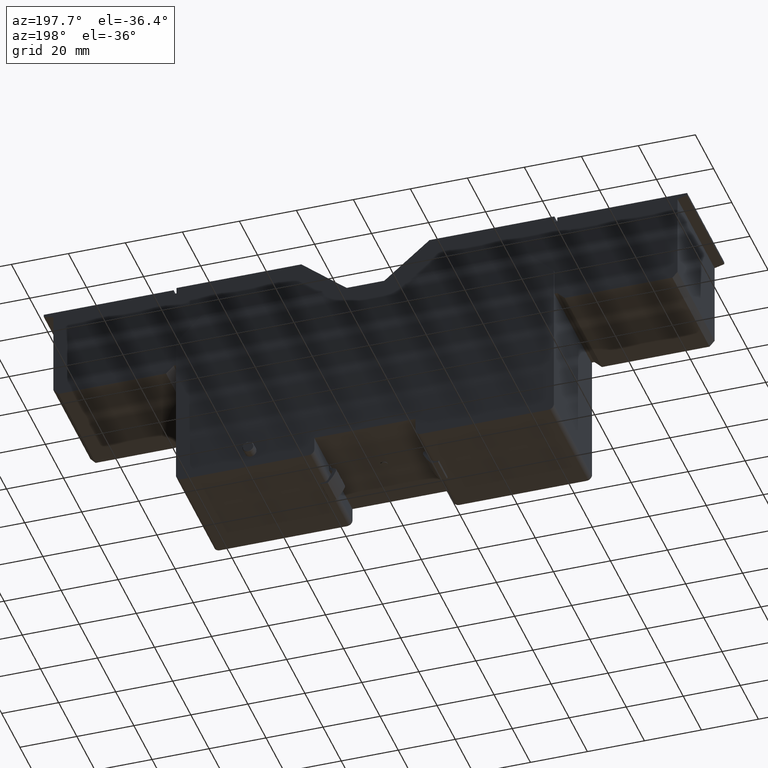
[diagram: clean part render]
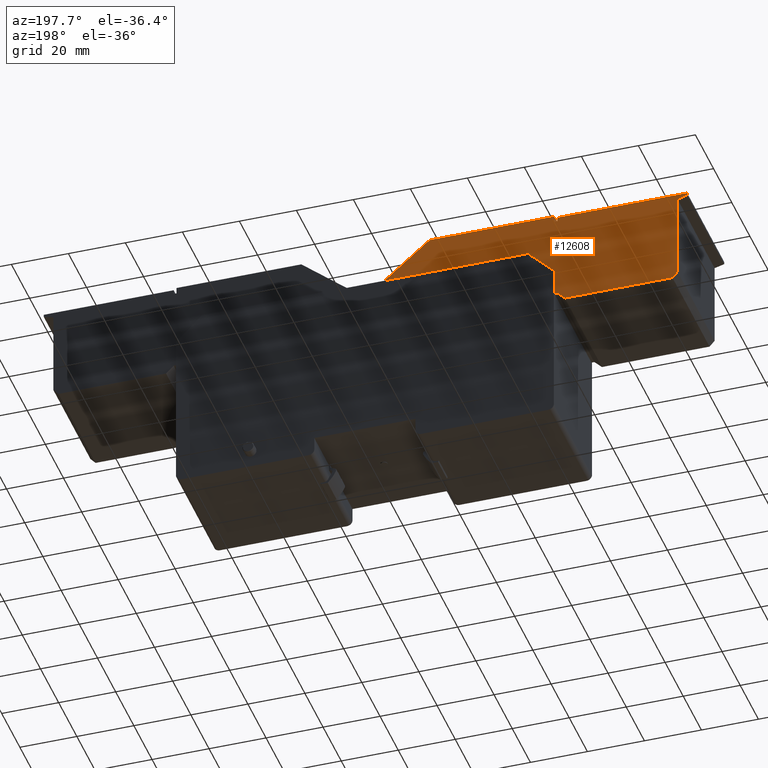
[diagram: same view with one face highlighted and labeled with its STEP entity id]
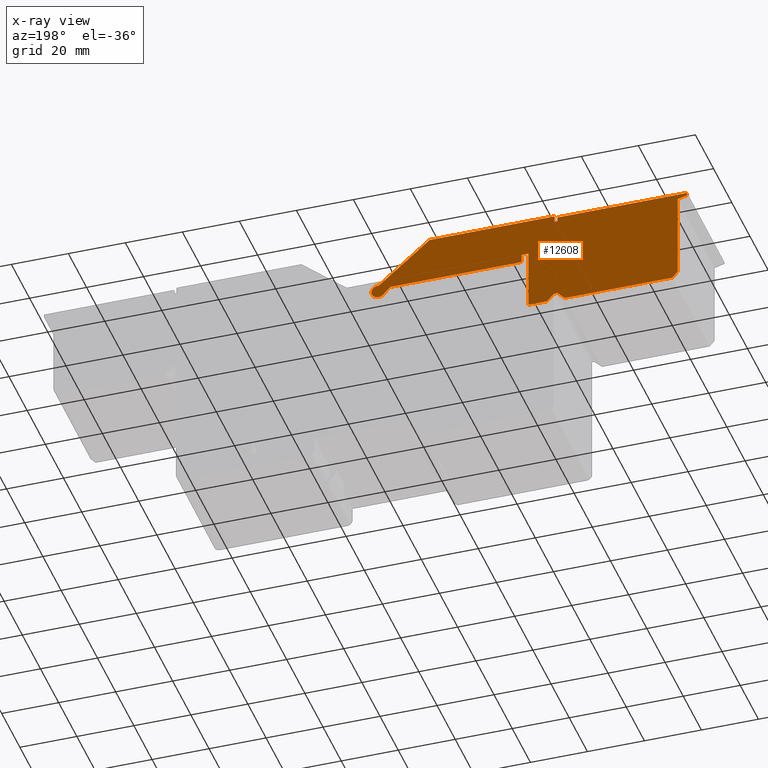
[diagram: x-ray of the same camera — body ghosted, the highlighted face saturated]
A machine part, auxiliary view. The second image highlights one B-rep face of the part: STEP entity #12608.
The next image is the same camera in x-ray: the body ghosted, the highlighted face saturated — about 0% of this face is hidden behind the body in this view.
In plain terms, the highlighted planar face has unit normal (-0, 1, -0).
Its self-contained STEP definition (entity closure, byte-faithful):
#482=LINE('',#19556,#1774);
#486=LINE('',#19565,#1778);
#489=LINE('',#19571,#1781);
#493=LINE('',#19583,#1785);
#496=LINE('',#19589,#1788);
#499=LINE('',#19595,#1791);
#502=LINE('',#19601,#1794);
#505=LINE('',#19607,#1797);
#508=LINE('',#19613,#1800);
#511=LINE('',#19619,#1803);
#514=LINE('',#19625,#1806);
#517=LINE('',#19631,#1809);
#520=LINE('',#19637,#1812);
#523=LINE('',#19643,#1815);
#526=LINE('',#19649,#1818);
#529=LINE('',#19655,#1821);
#532=LINE('',#19661,#1824);
#535=LINE('',#19667,#1827);
#538=LINE('',#19673,#1830);
#541=LINE('',#19679,#1833);
#1774=VECTOR('',#15922,1000.);
#1778=VECTOR('',#15928,1000.);
#1781=VECTOR('',#15933,1000.);
#1785=VECTOR('',#15945,1000.);
#1788=VECTOR('',#15950,1000.);
#1791=VECTOR('',#15955,1000.);
#1794=VECTOR('',#15960,1000.);
#1797=VECTOR('',#15965,1000.);
#1800=VECTOR('',#15970,1000.);
#1803=VECTOR('',#15975,1000.);
#1806=VECTOR('',#15980,1000.);
#1809=VECTOR('',#15985,1000.);
#1812=VECTOR('',#15990,1000.);
#1815=VECTOR('',#15995,1000.);
#1818=VECTOR('',#16000,1000.);
#1821=VECTOR('',#16005,1000.);
#1824=VECTOR('',#16010,1000.);
#1827=VECTOR('',#16015,1000.);
#1830=VECTOR('',#16020,1000.);
#1833=VECTOR('',#16025,1000.);
#3579=ORIENTED_EDGE('',*,*,#7063,.T.);
#3580=ORIENTED_EDGE('',*,*,#7067,.T.);
#3581=ORIENTED_EDGE('',*,*,#7070,.T.);
#3582=ORIENTED_EDGE('',*,*,#7073,.T.);
#3583=ORIENTED_EDGE('',*,*,#7076,.T.);
#3584=ORIENTED_EDGE('',*,*,#7079,.T.);
#3585=ORIENTED_EDGE('',*,*,#7082,.T.);
#3586=ORIENTED_EDGE('',*,*,#7085,.T.);
#3587=ORIENTED_EDGE('',*,*,#7088,.T.);
#3588=ORIENTED_EDGE('',*,*,#7091,.T.);
#3589=ORIENTED_EDGE('',*,*,#7094,.T.);
#3590=ORIENTED_EDGE('',*,*,#7097,.T.);
#3591=ORIENTED_EDGE('',*,*,#7100,.T.);
#3592=ORIENTED_EDGE('',*,*,#7103,.T.);
#3593=ORIENTED_EDGE('',*,*,#7106,.T.);
#3594=ORIENTED_EDGE('',*,*,#7109,.T.);
#3595=ORIENTED_EDGE('',*,*,#7112,.T.);
#3596=ORIENTED_EDGE('',*,*,#7115,.T.);
#3597=ORIENTED_EDGE('',*,*,#7118,.T.);
#3598=ORIENTED_EDGE('',*,*,#7121,.T.);
#3599=ORIENTED_EDGE('',*,*,#7124,.T.);
#7063=EDGE_CURVE('',#8900,#8901,#482,.T.);
#7067=EDGE_CURVE('',#8901,#8904,#486,.T.);
#7070=EDGE_CURVE('',#8904,#8906,#489,.T.);
#7073=EDGE_CURVE('',#8906,#8908,#10100,.T.);
#7076=EDGE_CURVE('',#8908,#8910,#493,.T.);
#7079=EDGE_CURVE('',#8910,#8912,#496,.T.);
#7082=EDGE_CURVE('',#8912,#8914,#499,.T.);
#7085=EDGE_CURVE('',#8914,#8916,#502,.T.);
#7088=EDGE_CURVE('',#8916,#8918,#505,.T.);
#7091=EDGE_CURVE('',#8918,#8920,#508,.T.);
#7094=EDGE_CURVE('',#8920,#8922,#511,.T.);
#7097=EDGE_CURVE('',#8922,#8924,#514,.T.);
#7100=EDGE_CURVE('',#8924,#8926,#517,.T.);
#7103=EDGE_CURVE('',#8926,#8928,#520,.T.);
#7106=EDGE_CURVE('',#8928,#8930,#523,.T.);
#7109=EDGE_CURVE('',#8930,#8932,#526,.T.);
#7112=EDGE_CURVE('',#8932,#8934,#529,.T.);
#7115=EDGE_CURVE('',#8934,#8936,#532,.T.);
#7118=EDGE_CURVE('',#8936,#8938,#535,.T.);
#7121=EDGE_CURVE('',#8938,#8940,#538,.T.);
#7124=EDGE_CURVE('',#8940,#8900,#541,.T.);
#8900=VERTEX_POINT('',#19557);
#8901=VERTEX_POINT('',#19558);
#8904=VERTEX_POINT('',#19566);
#8906=VERTEX_POINT('',#19572);
#8908=VERTEX_POINT('',#19578);
#8910=VERTEX_POINT('',#19584);
#8912=VERTEX_POINT('',#19590);
#8914=VERTEX_POINT('',#19596);
#8916=VERTEX_POINT('',#19602);
#8918=VERTEX_POINT('',#19608);
#8920=VERTEX_POINT('',#19614);
#8922=VERTEX_POINT('',#19620);
#8924=VERTEX_POINT('',#19626);
#8926=VERTEX_POINT('',#19632);
#8928=VERTEX_POINT('',#19638);
#8930=VERTEX_POINT('',#19644);
#8932=VERTEX_POINT('',#19650);
#8934=VERTEX_POINT('',#19656);
#8936=VERTEX_POINT('',#19662);
#8938=VERTEX_POINT('',#19668);
#8940=VERTEX_POINT('',#19674);
#10100=CIRCLE('',#14471,2.41911089923885);
#10537=EDGE_LOOP('',(#3579,#3580,#3581,#3582,#3583,#3584,#3585,#3586,#3587,
#3588,#3589,#3590,#3591,#3592,#3593,#3594,#3595,#3596,#3597,#3598,#3599));
#11329=FACE_BOUND('',#10537,.T.);
#12052=PLANE('',#14491);
#12608=ADVANCED_FACE('',(#11329),#12052,.T.);
#14471=AXIS2_PLACEMENT_3D('',#19577,#15938,#15939);
#14491=AXIS2_PLACEMENT_3D('',#19682,#16029,#16030);
#15922=DIRECTION('',(0.,0.,1.));
#15928=DIRECTION('',(-1.,0.,-1.5842672720808E-16));
#15933=DIRECTION('',(-0.766044443118978,0.,-0.642787609686539));
#15938=DIRECTION('',(0.,-1.,0.));
#15939=DIRECTION('',(1.,0.,0.));
#15945=DIRECTION('',(0.696896255024751,0.,0.717171952695082));
#15950=DIRECTION('',(1.,0.,-1.5050925495941E-16));
#15955=DIRECTION('',(0.,0.,1.));
#15960=DIRECTION('',(1.,0.,0.));
#15965=DIRECTION('',(0.,0.,-1.));
#15970=DIRECTION('',(1.,0.,0.));
#15975=DIRECTION('',(0.709099554956058,0.,0.705108375472254));
#15980=DIRECTION('',(1.,0.,0.));
#15985=DIRECTION('',(0.709099554956058,0.,-0.705108375472254));
#15990=DIRECTION('',(1.,0.,1.838117590439E-16));
#15995=DIRECTION('',(0.662620048215736,0.,0.748955720789004));
#16000=DIRECTION('',(0.,0.,1.));
#16005=DIRECTION('',(0.965925826289068,0.,0.25881904510252));
#16010=DIRECTION('',(0.,0.,1.));
#16015=DIRECTION('',(-1.,0.,0.));
#16020=DIRECTION('',(0.,0.,-1.));
#16025=DIRECTION('',(-1.,0.,0.));
#16029=DIRECTION('',(0.,-1.,0.));
#16030=DIRECTION('',(0.,0.,-1.));
#19556=CARTESIAN_POINT('',(66.3000000000011,0.6,48.4099999999993));
#19557=CARTESIAN_POINT('',(66.3000000000011,0.6,48.4099999999993));
#19558=CARTESIAN_POINT('',(66.3000000000011,0.6,50.6099999999993));
#19565=CARTESIAN_POINT('',(66.3000000000011,0.6,50.6099999999993));
#19566=CARTESIAN_POINT('',(22.5012418851939,0.6,50.6099999999993));
#19571=CARTESIAN_POINT('',(4.75124188519389,0.6,35.7159815466026));
#19572=CARTESIAN_POINT('',(4.75124188519389,0.6,35.7159815466026));
#19577=CARTESIAN_POINT('',(4.49954695035296,0.6,33.3100000000001));
#19578=CARTESIAN_POINT('',(6.23446543774604,0.6,31.624130673831));
#19583=CARTESIAN_POINT('',(6.23446543774604,0.6,31.624130673831));
#19584=CARTESIAN_POINT('',(8.74722774337997,0.6,34.2099999999993));
#19589=CARTESIAN_POINT('',(8.74722774337997,0.6,34.2099999999993));
#19590=CARTESIAN_POINT('',(54.85,0.6,34.2099999999993));
#19595=CARTESIAN_POINT('',(54.85,0.6,34.2099999999993));
#19596=CARTESIAN_POINT('',(54.85,0.6,37.2099999999993));
#19601=CARTESIAN_POINT('',(54.85,0.6,37.2099999999993));
#19602=CARTESIAN_POINT('',(57.2,0.6,37.2099999999993));
#19607=CARTESIAN_POINT('',(57.2,0.6,37.2099999999993));
#19608=CARTESIAN_POINT('',(57.2,0.6,15.9099999999993));
#19613=CARTESIAN_POINT('',(57.2,0.6,15.9099999999993));
#19614=CARTESIAN_POINT('',(63.635,0.6,15.9099999999993));
#19619=CARTESIAN_POINT('',(63.635,0.6,15.9099999999993));
#19620=CARTESIAN_POINT('',(66.3,0.6,18.5599999999993));
#19625=CARTESIAN_POINT('',(67.3,0.6,18.5599999999993));
#19626=CARTESIAN_POINT('',(67.3,0.6,18.5599999999993));
#19631=CARTESIAN_POINT('',(67.3,0.6,18.5599999999993));
#19632=CARTESIAN_POINT('',(69.965,0.6,15.9099999999993));
#19637=CARTESIAN_POINT('',(69.965,0.6,15.9099999999993));
#19638=CARTESIAN_POINT('',(107.715,0.6,15.9099999999993));
#19643=CARTESIAN_POINT('',(107.715,0.6,15.9099999999993));
#19644=CARTESIAN_POINT('',(109.5,0.6,17.9275754796551));
#19649=CARTESIAN_POINT('',(109.5,0.6,17.9275754796551));
#19650=CARTESIAN_POINT('',(109.5,0.6,48.1099999999993));
#19655=CARTESIAN_POINT('',(109.5,0.6,48.1099999999993));
#19656=CARTESIAN_POINT('',(112.858845726812,0.6,49.0099999999993));
#19661=CARTESIAN_POINT('',(112.858845726812,0.6,49.0099999999993));
#19662=CARTESIAN_POINT('',(112.858845726812,0.6,49.9099999999993));
#19667=CARTESIAN_POINT('',(112.858845726812,0.6,49.9099999999993));
#19668=CARTESIAN_POINT('',(67.3,0.6,49.9099999999993));
#19673=CARTESIAN_POINT('',(67.3,0.6,49.9099999999993));
#19674=CARTESIAN_POINT('',(67.3,0.6,48.4099999999993));
#19679=CARTESIAN_POINT('',(67.3,0.6,48.4099999999993));
#19682=CARTESIAN_POINT('',(4.49954695035296,0.6,33.3100000000001));